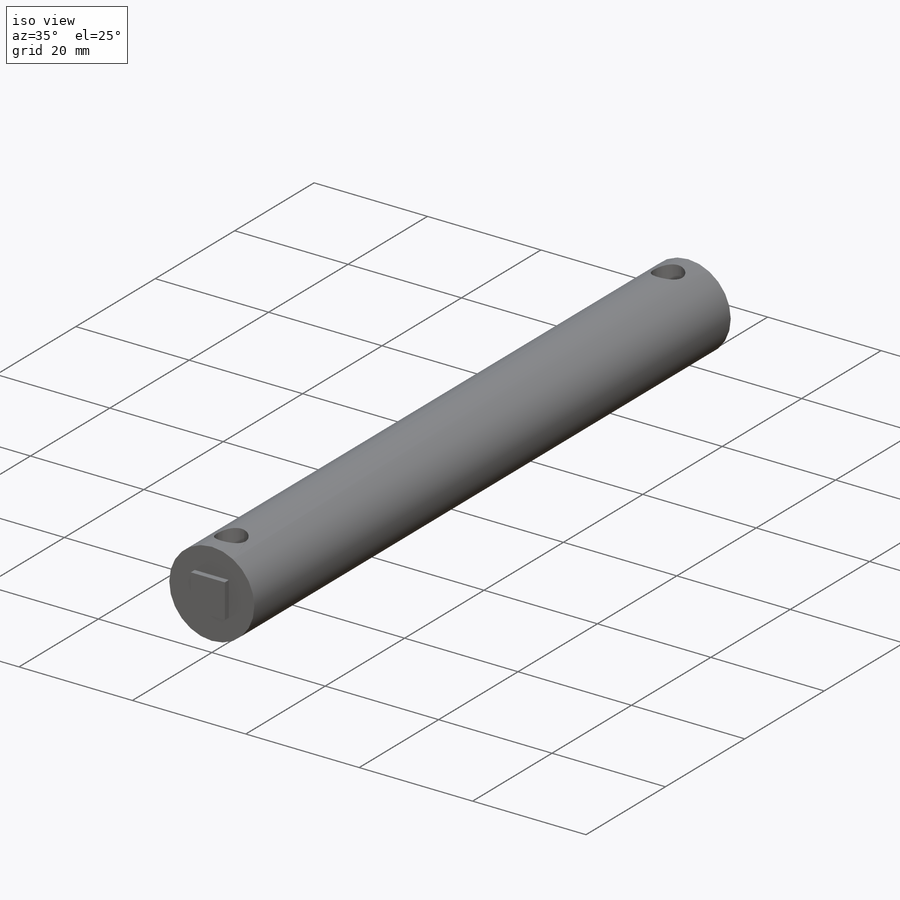
[diagram: iso view]
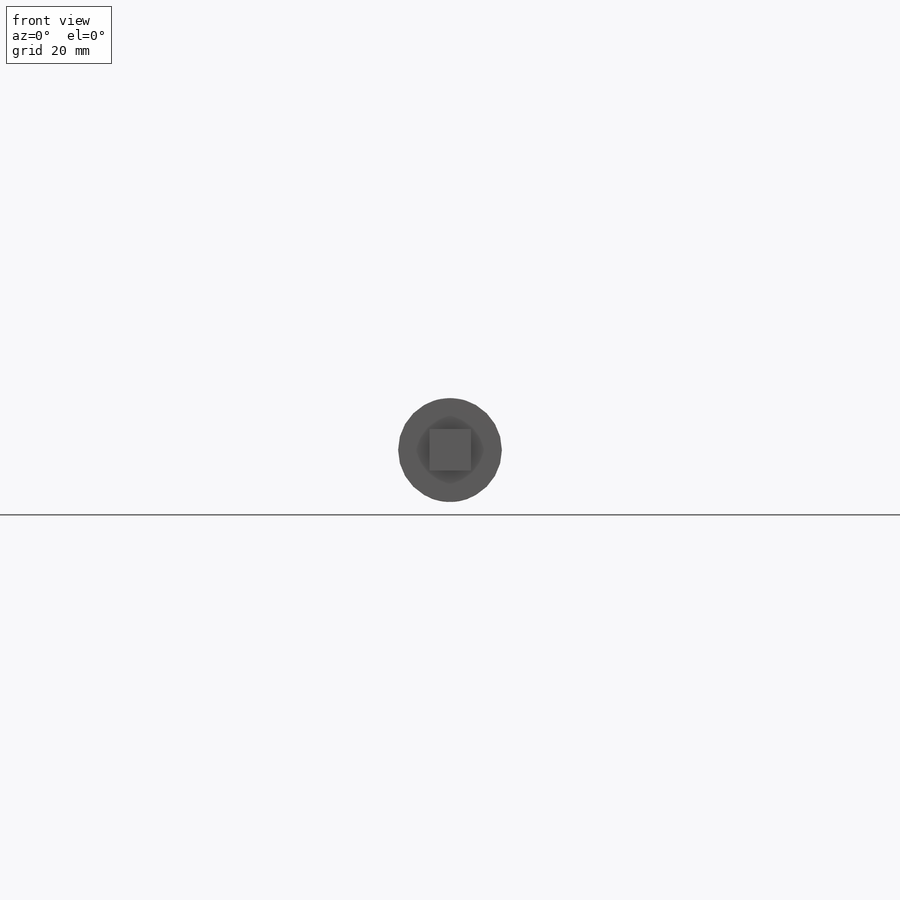
[diagram: front view]
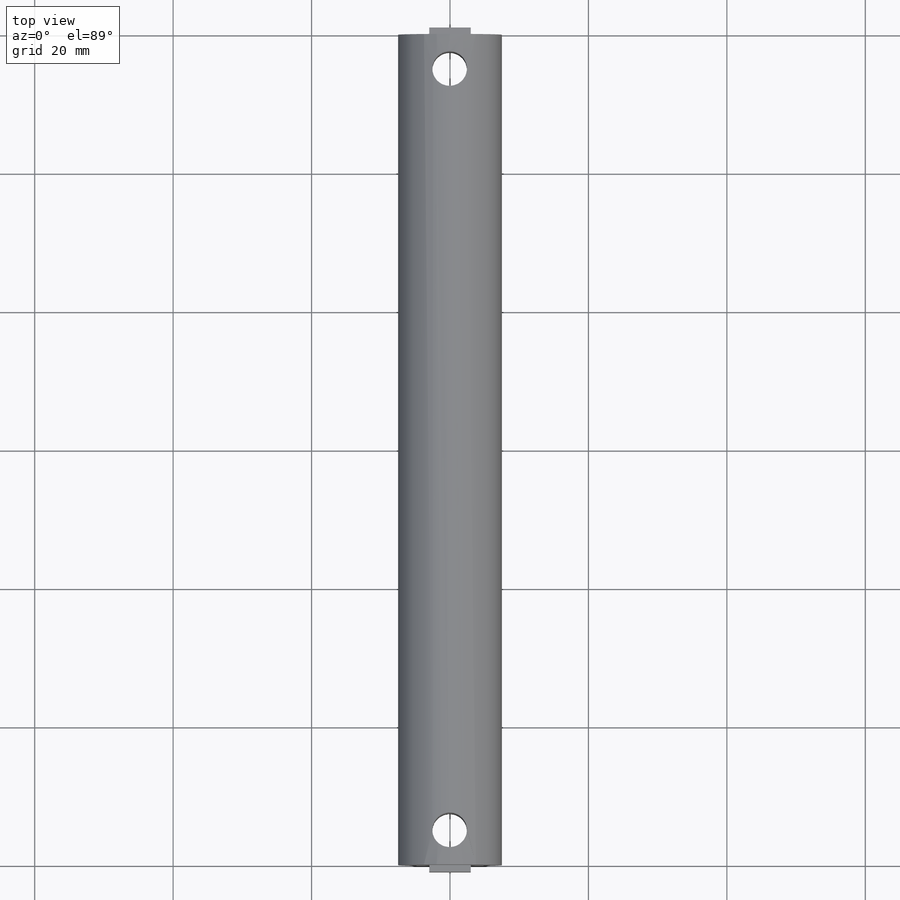
[diagram: top view]
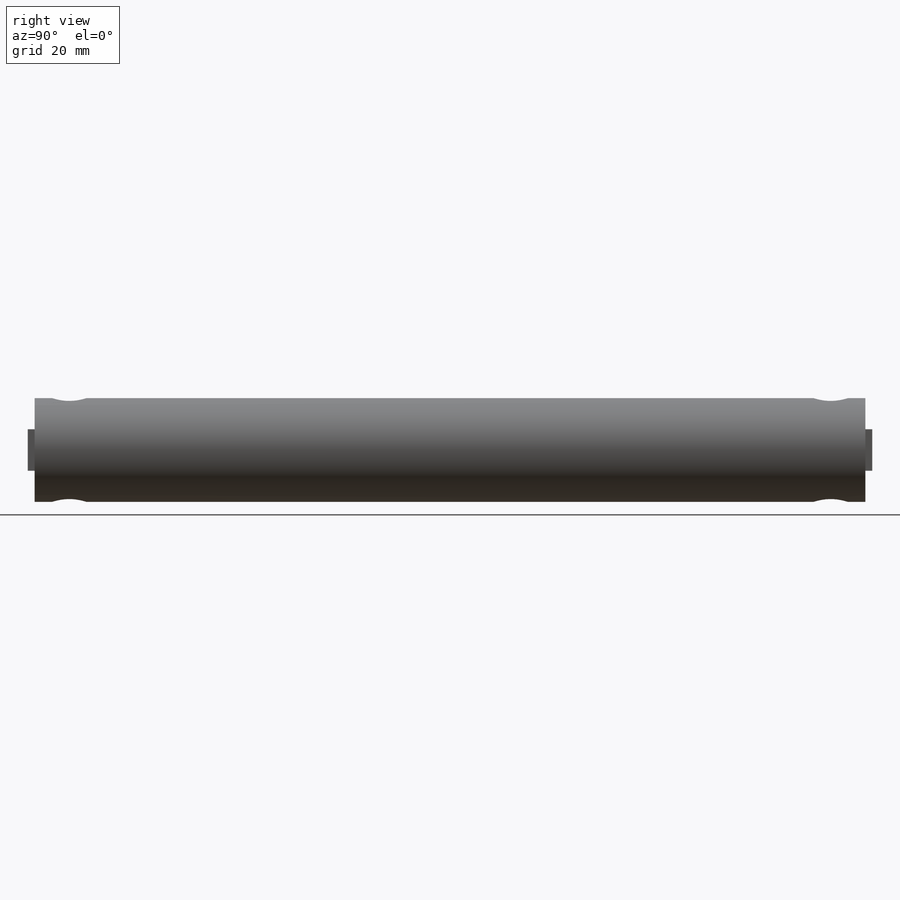
[diagram: right view]
SOLIDWORKS PART (.sldprt)
format: sldprt  version: not decoded by parser v0  size: 166,400 bytes
history: native  units: mm
features: plane x3, sketch x3, extrude x2, material x1, cut_extrude x1, mirror x1 (+9 scaffold rows collapsed)
feature tree (20):
  scaffold x9  (default folders/planes/origin — collapsed)
  material  "Matériau <non spécifié>"
  plane  "Plan de face"
  plane  "Plan de dessus"
  plane  "Plan de droite"
  sketch  "Esquisse1"  dims[D1=15.0mm]
  extrude  "Boss.-Extru.1"  Depth=60mm
  sketch  "Esquisse6"  dims[D1=3.0mm D2=6.0mm D3=6.0mm D4=3.0mm]
  extrude  "Boss.-Extru.2"  Depth=1mm
  sketch  "Esquisse3D4"  dims[D3=5.0mm D1=50.0mm D2=5.0mm]
  cut_extrude  "Enlèv. mat.-Extru.2"  [1 undecoded]
  mirror  "Symétrie4"
decode coverage: 5 of 7 modeling features carry decoded parameters
note: 1 parameter value undecoded
note: suppression state not decoded; provenance and decode notes live in map.json
